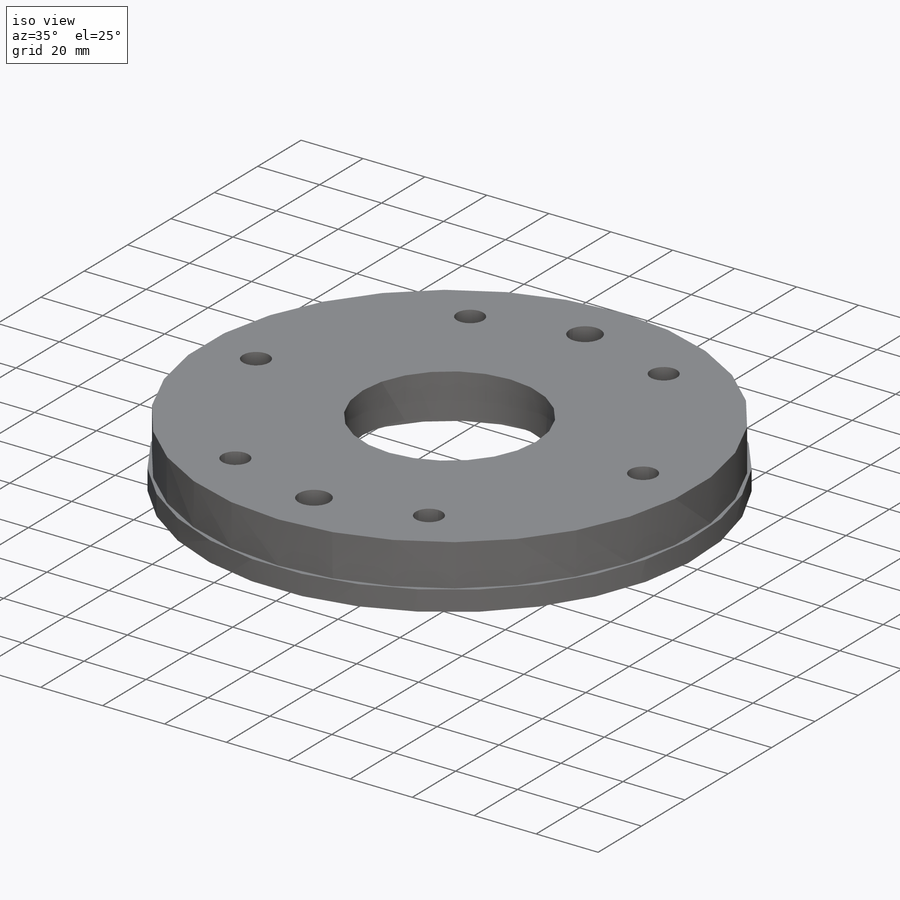
[diagram: iso view]
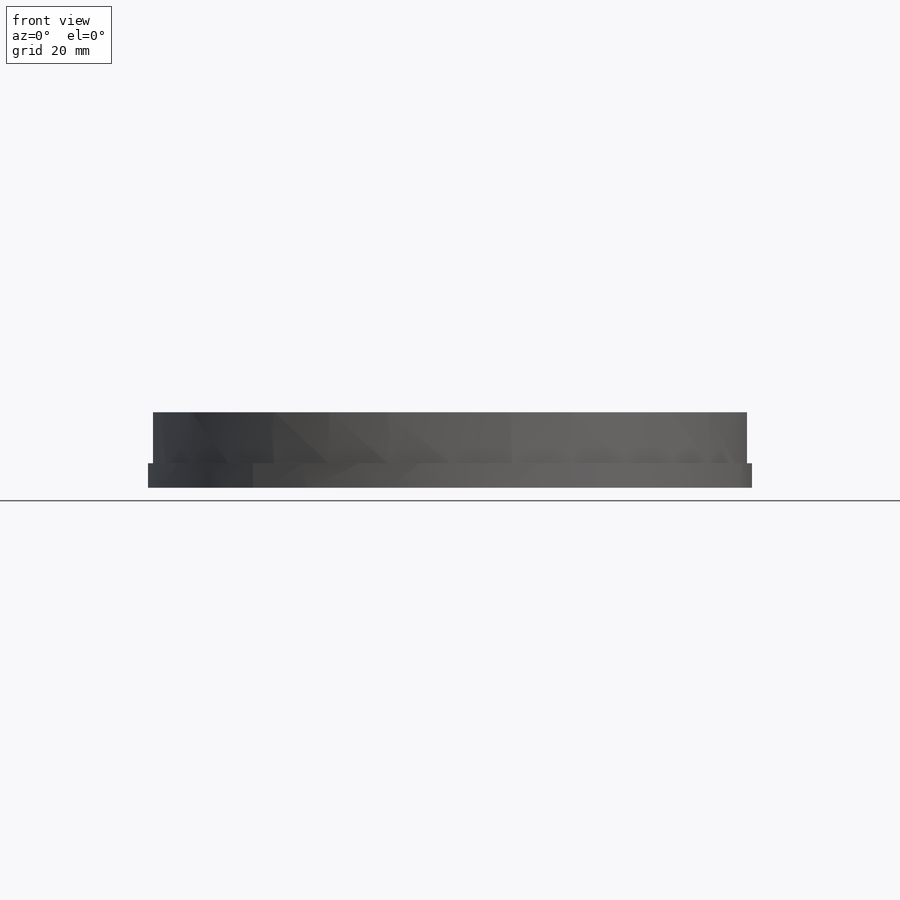
[diagram: front view]
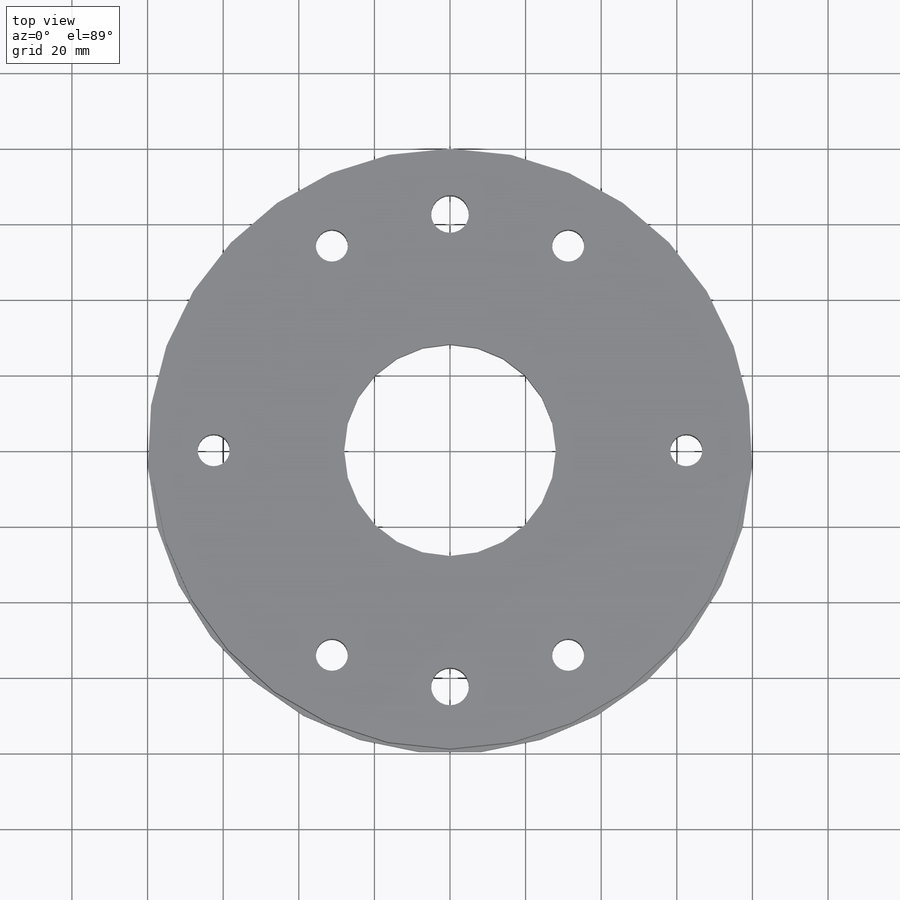
[diagram: top view]
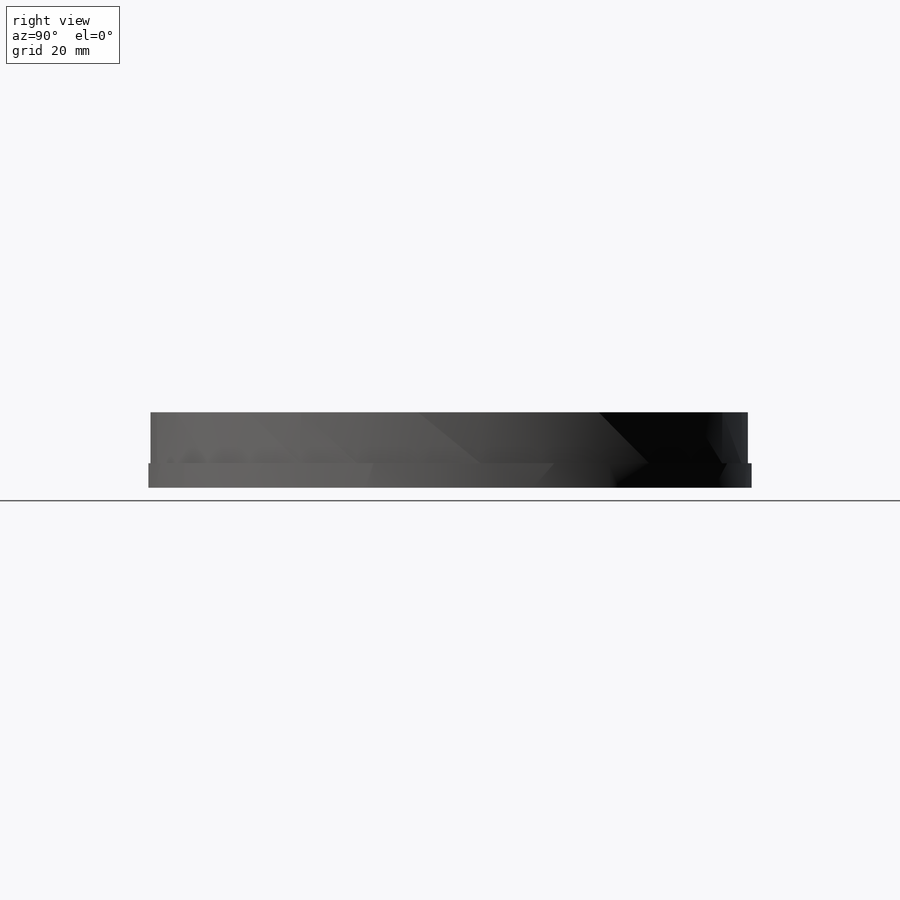
[diagram: right view]
SOLIDWORKS PART (.sldprt)
format: sldprt  version: not decoded by parser v0  size: 188,416 bytes
history: native  units: mm
features: sketch x6, plane x3, cut_extrude x3, material x1, revolve x1, hole x1, thread x1, pattern_circular x1 (+8 scaffold rows collapsed)
feature tree (25):
  scaffold x8  (default folders/planes/origin — collapsed)
  material  "Materiale <non specificato>"
  plane  "Piano frontale"
  plane  "Piano superiore"
  plane  "Piano destro"
  sketch  "Schizzo1"  dims[D1=160.0mm D2=6.5mm D3=13.5mm D4=158.0mm]
  revolve  "Rivoluzione1"  Angle=360deg
  sketch  "Schizzo2"  dims[D1=56.0mm]
  cut_extrude  "Taglio-Estrusione1"  [1 undecoded]
  hole  "M10 Foro filettato profondo1"  Diameter=8.5mm Depth=25mm
  sketch  "Schizzo4"  dims[D1=125.0mm]
  sketch  "Schizzo3"  dims[hole-wizard template sketch: 46 standard entries collapsed; hole parameters kept: c15.Tap Drill Dia.=8.5mm c15.Tap Drill Depth=25.0mm c15.D3=~14.816244mm c15.Drill Angle=118.0deg]
  thread  "Filettatura del foro1"  Diameter=21mm  [1 undecoded]
  pattern_circular  "RipetizioneCircolare1"  Count=6 Angle=360deg
  sketch  "Schizzo5"  dims[D1=10.0mm]
  cut_extrude  "Taglio-Estrusione2"  [1 undecoded]
  sketch  "Schizzo6"  dims[D1=80.0mm]
  cut_extrude  "Taglio-Estrusione3"  Depth=7mm
decode coverage: 11 of 13 modeling features carry decoded parameters
note: ~ marks probable driven/reference dimensions
note: 3 parameter values undecoded
note: suppression state not decoded; provenance and decode notes live in map.json
